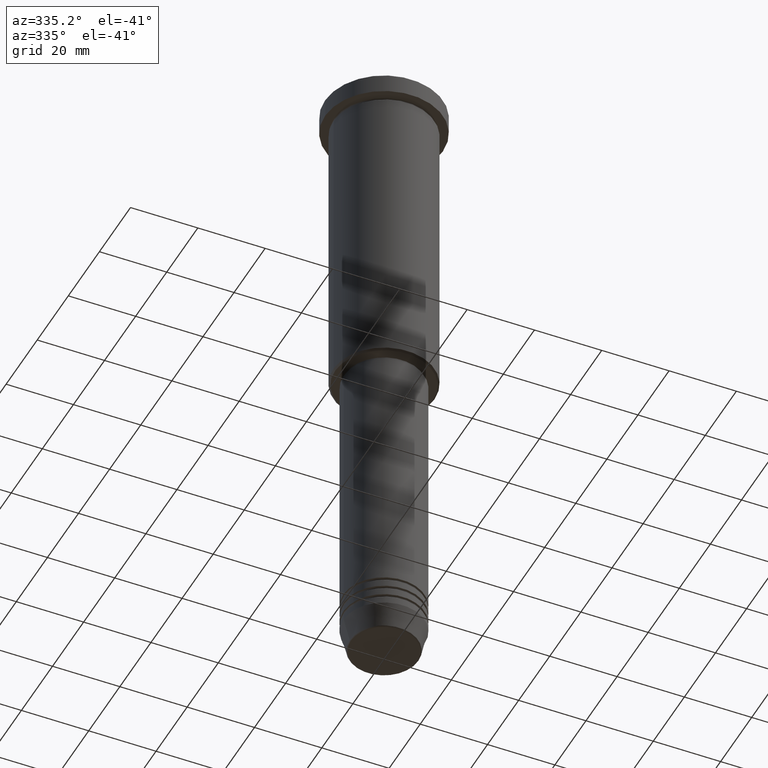
[diagram: clean part render]
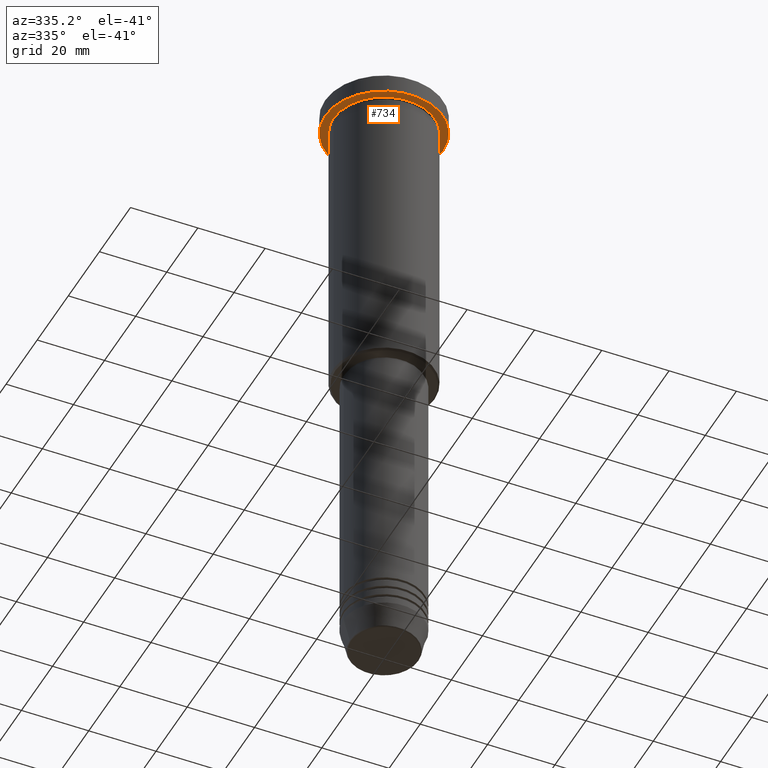
[diagram: same view with one face highlighted and labeled with its STEP entity id]
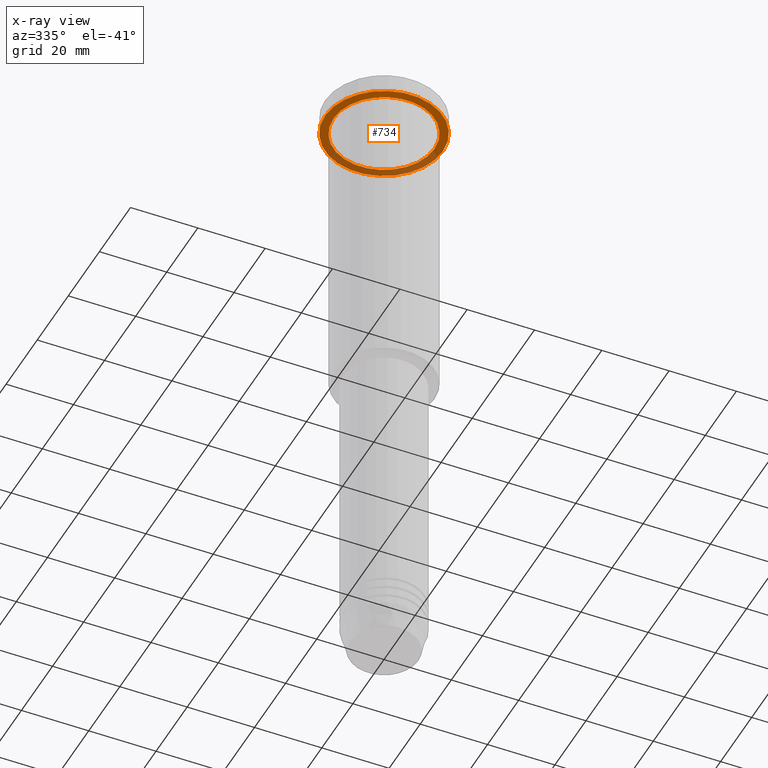
[diagram: x-ray of the same camera — body ghosted, the highlighted face saturated]
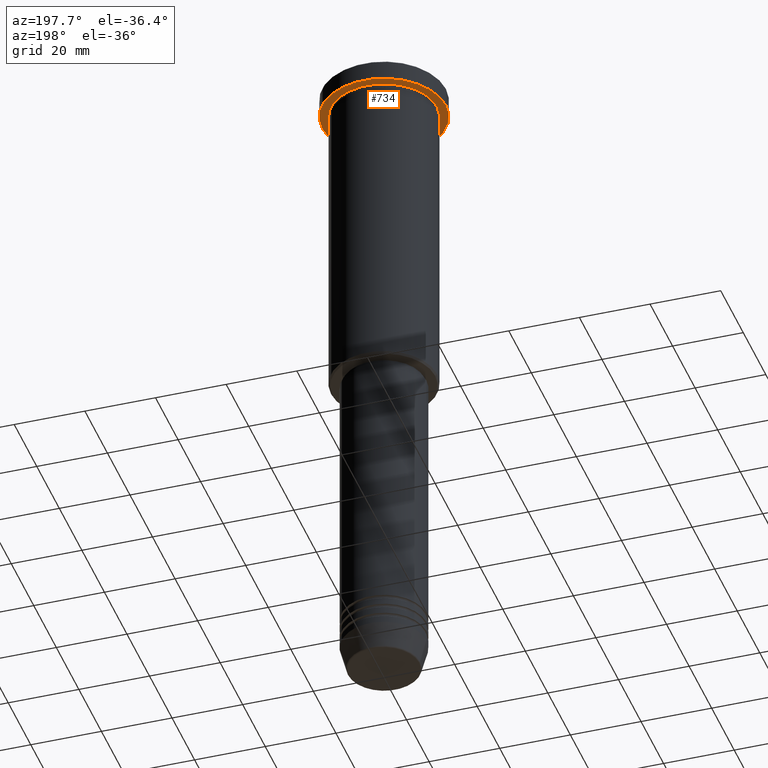
[diagram: same view with one face highlighted and labeled with its STEP entity id]
A machine part, auxiliary view. The second image highlights one B-rep face of the part: STEP entity #734.
The next image is the same camera in x-ray: the body ghosted, the highlighted face saturated — about 33% of this face is hidden behind the body in this view.
A second angle (auxiliary view) of the same face is appended — the face is thin or edge-on in the first view.
In plain terms, the highlighted planar face has unit normal (0, 0, -1).
Its self-contained STEP definition (entity closure, byte-faithful):
#5 = VERTEX_POINT ( 'NONE', #1143 ) ;
#13 = EDGE_CURVE ( 'NONE', #180, #391, #402, .T. ) ;
#21 = CIRCLE ( 'NONE', #420, 17.50000000000000000 ) ;
#34 = VERTEX_POINT ( 'NONE', #168 ) ;
#109 = CARTESIAN_POINT ( 'NONE',  ( 0.000000000000000000, 17.50000000000000000, -5.999999999999995559 ) ) ;
#119 = AXIS2_PLACEMENT_3D ( 'NONE', #1094, #267, #635 ) ;
#143 = CARTESIAN_POINT ( 'NONE',  ( -17.50000000000000000, 2.143131898507868248E-15, -5.999999999999995559 ) ) ;
#168 = CARTESIAN_POINT ( 'NONE',  ( -15.00000000000000000, 0.000000000000000000, -5.999999999999994671 ) ) ;
#180 = VERTEX_POINT ( 'NONE', #541 ) ;
#198 = DIRECTION ( 'NONE',  ( -1.000000000000000000, 0.000000000000000000, -0.000000000000000000 ) ) ;
#237 = DIRECTION ( 'NONE',  ( -0.000000000000000000, -0.000000000000000000, 1.000000000000000000 ) ) ;
#260 = DIRECTION ( 'NONE',  ( -1.000000000000000000, 0.000000000000000000, 0.000000000000000000 ) ) ;
#267 = DIRECTION ( 'NONE',  ( -0.000000000000000000, -0.000000000000000000, 1.000000000000000000 ) ) ;
#323 = FACE_BOUND ( 'NONE', #733, .T. ) ;
#335 = DIRECTION ( 'NONE',  ( -0.000000000000000000, -0.000000000000000000, 1.000000000000000000 ) ) ;
#339 = DIRECTION ( 'NONE',  ( 1.000000000000000000, 0.000000000000000000, 0.000000000000000000 ) ) ;
#340 = EDGE_CURVE ( 'NONE', #5, #34, #833, .T. ) ;
#354 = AXIS2_PLACEMENT_3D ( 'NONE', #605, #237, #260 ) ;
#391 = VERTEX_POINT ( 'NONE', #143 ) ;
#395 = FACE_OUTER_BOUND ( 'NONE', #989, .T. ) ;
#401 = ORIENTED_EDGE ( 'NONE', *, *, #469, .F. ) ;
#402 = CIRCLE ( 'NONE', #536, 17.50000000000000000 ) ;
#420 = AXIS2_PLACEMENT_3D ( 'NONE', #1138, #335, #730 ) ;
#453 = ORIENTED_EDGE ( 'NONE', *, *, #13, .F. ) ;
#469 = EDGE_CURVE ( 'NONE', #391, #180, #21, .T. ) ;
#474 = CIRCLE ( 'NONE', #119, 15.00000000000000000 ) ;
#536 = AXIS2_PLACEMENT_3D ( 'NONE', #959, #863, #339 ) ;
#541 = CARTESIAN_POINT ( 'NONE',  ( 17.50000000000000000, 0.000000000000000000, -5.999999999999995559 ) ) ;
#605 = CARTESIAN_POINT ( 'NONE',  ( 0.000000000000000000, 0.000000000000000000, -5.999999999999995559 ) ) ;
#635 = DIRECTION ( 'NONE',  ( -1.000000000000000000, 0.000000000000000000, 0.000000000000000000 ) ) ;
#646 = DIRECTION ( 'NONE',  ( 0.000000000000000000, 0.000000000000000000, -1.000000000000000000 ) ) ;
#667 = AXIS2_PLACEMENT_3D ( 'NONE', #109, #646, #198 ) ;
#677 = EDGE_CURVE ( 'NONE', #34, #5, #474, .T. ) ;
#730 = DIRECTION ( 'NONE',  ( 1.000000000000000000, 0.000000000000000000, 0.000000000000000000 ) ) ;
#733 = EDGE_LOOP ( 'NONE', ( #883, #767 ) ) ;
#734 = ADVANCED_FACE ( 'NONE', ( #323, #395 ), #991, .T. ) ;
#767 = ORIENTED_EDGE ( 'NONE', *, *, #340, .T. ) ;
#833 = CIRCLE ( 'NONE', #354, 15.00000000000000000 ) ;
#863 = DIRECTION ( 'NONE',  ( -0.000000000000000000, -0.000000000000000000, 1.000000000000000000 ) ) ;
#883 = ORIENTED_EDGE ( 'NONE', *, *, #677, .T. ) ;
#959 = CARTESIAN_POINT ( 'NONE',  ( 0.000000000000000000, 0.000000000000000000, -5.999999999999995559 ) ) ;
#989 = EDGE_LOOP ( 'NONE', ( #453, #401 ) ) ;
#991 = PLANE ( 'NONE',  #667 ) ;
#1094 = CARTESIAN_POINT ( 'NONE',  ( 0.000000000000000000, 0.000000000000000000, -5.999999999999995559 ) ) ;
#1138 = CARTESIAN_POINT ( 'NONE',  ( 0.000000000000000000, 0.000000000000000000, -5.999999999999995559 ) ) ;
#1143 = CARTESIAN_POINT ( 'NONE',  ( 15.00000000000000000, 1.836970198721029589E-15, -5.999999999999994671 ) ) ;